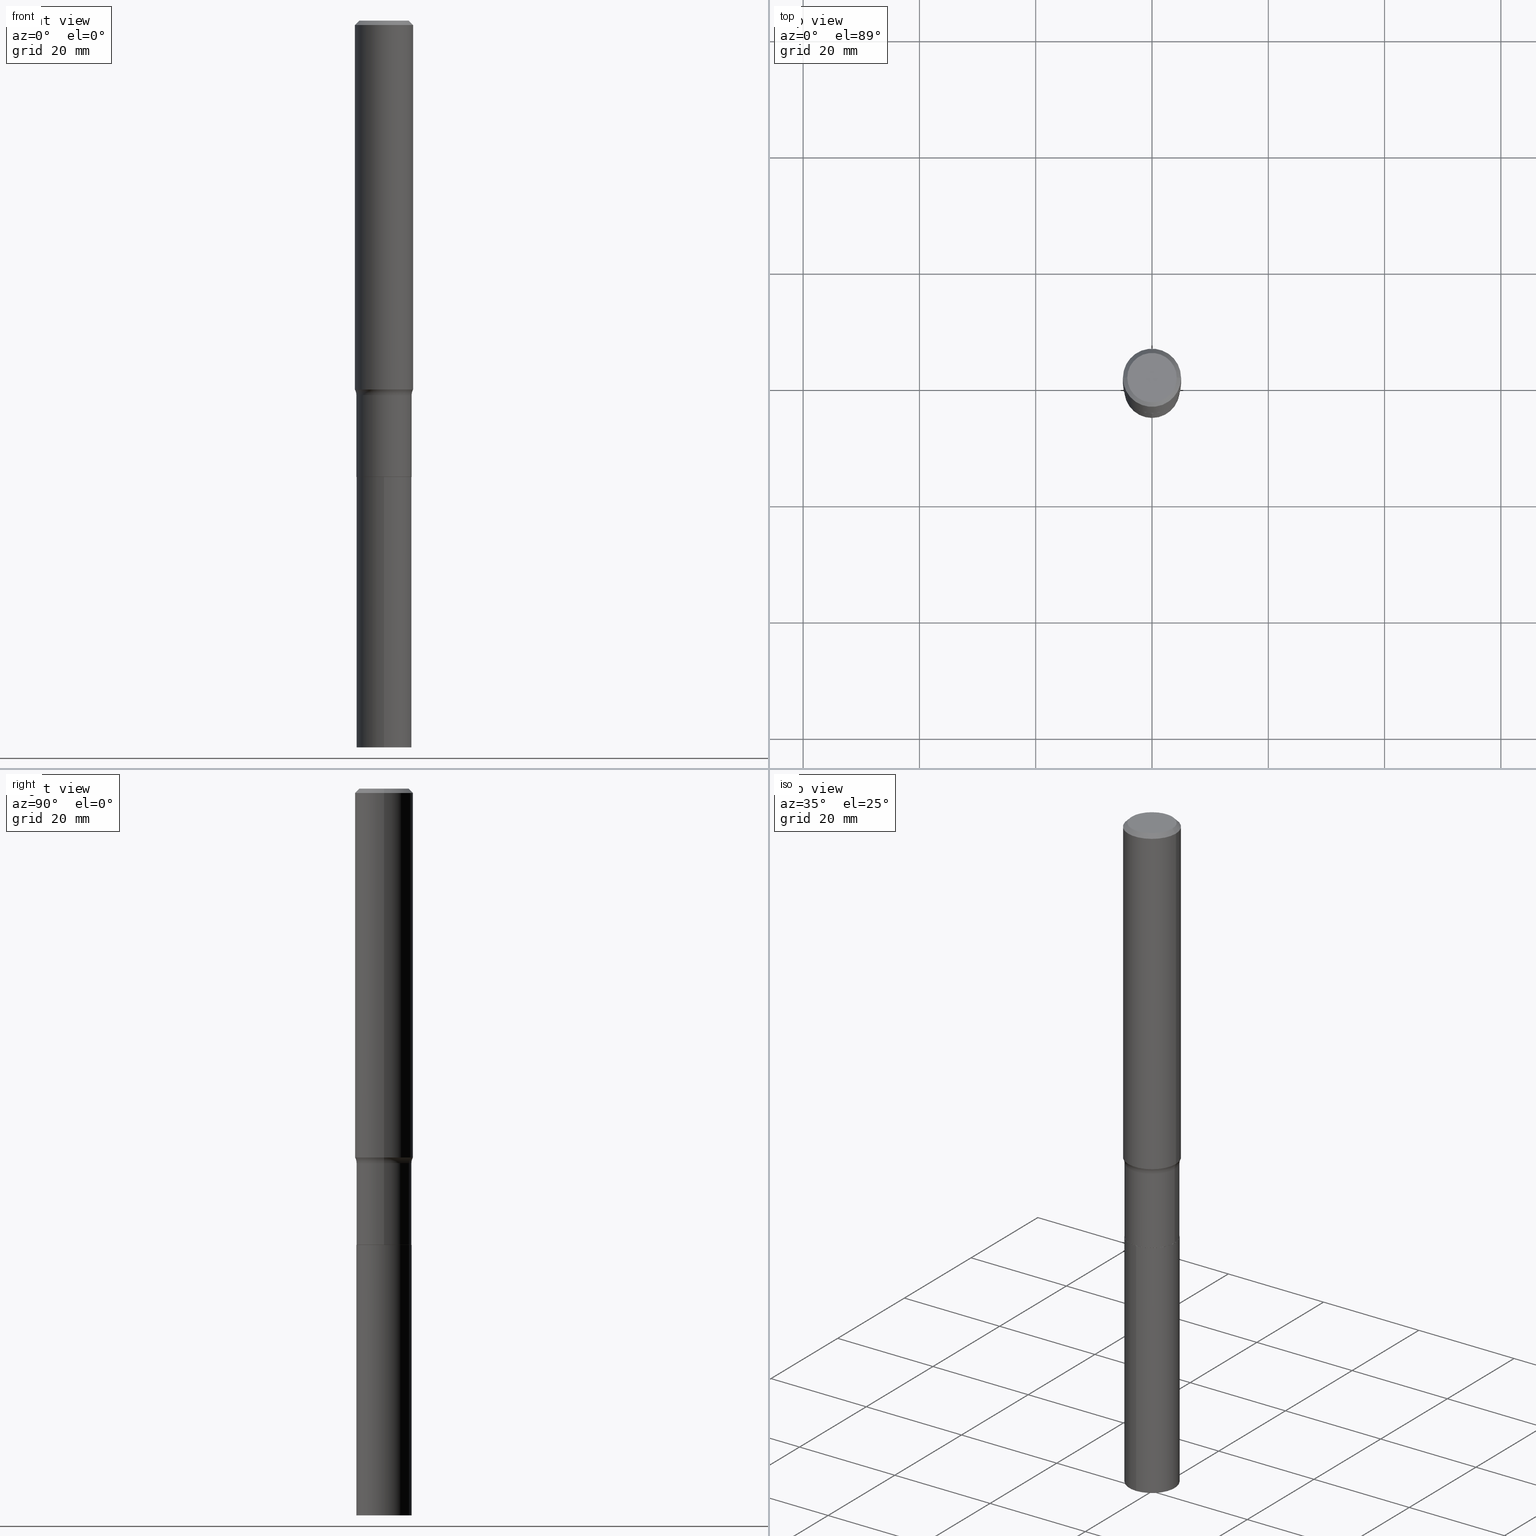
[diagram: canonical four-view strip — front | top / right | iso, engineering-drawing reading convention]
A machine part, canonical four-view strip (front | top / right | iso — engineering-drawing reading convention). The complete STEP part file that produces these views, byte-faithful:
ISO-10303-21;
HEADER;
FILE_DESCRIPTION (( 'STEP AP203' ),
    '1' );
FILE_NAME ('67883.STEP',
    '2024-04-19T16:53:20',
    ( '' ),
    ( '' ),
    'SwSTEP 2.0',
    'SolidWorks 2023',
    '' );
FILE_SCHEMA (( 'CONFIG_CONTROL_DESIGN' ));
ENDSEC;

DATA;
#1 = LOCAL_TIME ( 12, 53, 20.00000000000000000, #291 ) ;
#2 = CYLINDRICAL_SURFACE ( 'NONE', #114, 0.1869999999999999718 ) ;
#3 = CARTESIAN_POINT ( 'NONE',  ( -1.305814020727256468E-15, -0.1870000000000107965, -3.090299999999999159 ) ) ;
#4 = DIRECTION ( 'NONE',  ( -6.982962677686266711E-15, -1.000000000000000000, 2.921762560068730595E-15 ) ) ;
#5 = DIRECTION ( 'NONE',  ( -2.445466127994541695E-29, 3.491485174164510259E-15, 1.000000000000000000 ) ) ;
#6 = AXIS2_PLACEMENT_3D ( 'NONE', #420, #249, #244 ) ;
#7 = AXIS2_PLACEMENT_3D ( 'NONE', #398, #324, #463 ) ;
#8 = DIRECTION ( 'NONE',  ( -1.000000000000000000, 6.982962677686265922E-15, 0.000000000000000000 ) ) ;
#9 = ORIENTED_EDGE ( 'NONE', *, *, #41, .F. ) ;
#10 = CARTESIAN_POINT ( 'NONE',  ( 7.220858017463206858E-31, -1.030947152326916240E-16, -0.02952750000000018207 ) ) ;
#11 = ORIENTED_EDGE ( 'NONE', *, *, #345, .T. ) ;
#12 = CARTESIAN_POINT ( 'NONE',  ( -0.1673224999999999851, 1.219954130253505263E-15, 4.096137381439757534E-18 ) ) ;
#13 = EDGE_CURVE ( 'NONE', #301, #168, #53, .T. ) ;
#14 = ORIENTED_EDGE ( 'NONE', *, *, #350, .T. ) ;
#15 = FACE_OUTER_BOUND ( 'NONE', #84, .T. ) ;
#16 = AXIS2_PLACEMENT_3D ( 'NONE', #442, #305, #83 ) ;
#17 = CC_DESIGN_SECURITY_CLASSIFICATION ( #239, ( #182 ) ) ;
#18 = ORIENTED_EDGE ( 'NONE', *, *, #262, .T. ) ;
#19 = PERSON_AND_ORGANIZATION ( #332, #408 ) ;
#20 = DIRECTION ( 'NONE',  ( -0.7071067811865455743, 2.468850131082236945E-15, -0.7071067811865493491 ) ) ;
#21 = MECHANICAL_CONTEXT ( 'NONE', #117, 'mechanical' ) ;
#22 = LINE ( 'NONE', #208, #357 ) ;
#23 = CIRCLE ( 'NONE', #323, 0.1869999999999999440 ) ;
#24 = EDGE_CURVE ( 'NONE', #284, #422, #31, .T. ) ;
#25 = MANIFOLD_SOLID_BREP ( 'Body-Move/Copy2[1]', #314 ) ;
#26 = ORIENTED_EDGE ( 'NONE', *, *, #13, .F. ) ;
#27 = COORDINATED_UNIVERSAL_TIME_OFFSET ( 5, 0, .BEHIND. ) ;
#28 = EDGE_CURVE ( 'NONE', #422, #200, #141, .T. ) ;
#29 = FACE_OUTER_BOUND ( 'NONE', #409, .T. ) ;
#30 = CARTESIAN_POINT ( 'NONE',  ( -0.1864999999999999991, -9.464562579234385679E-15, -3.090299999999999603 ) ) ;
#31 = CIRCLE ( 'NONE', #6, 0.1869999999999999996 ) ;
#32 =( GEOMETRIC_REPRESENTATION_CONTEXT ( 3 ) GLOBAL_UNCERTAINTY_ASSIGNED_CONTEXT ( ( #267 ) ) GLOBAL_UNIT_ASSIGNED_CONTEXT ( ( #191, #348, #209 ) ) REPRESENTATION_CONTEXT ( 'NONE', 'WORKASPACE' ) );
#33 = CARTESIAN_POINT ( 'NONE',  ( -5.008488096090108951E-47, 7.150793614331948590E-33, 2.048068690724054183E-18 ) ) ;
#34 = DIRECTION ( 'NONE',  ( -2.445466127994541976E-29, 3.491485174164510259E-15, 1.000000000000000000 ) ) ;
#35 = DIRECTION ( 'NONE',  ( -2.445468806185136877E-29, 3.491481338843145188E-15, 1.000000000000000000 ) ) ;
#36 = CARTESIAN_POINT ( 'NONE',  ( 1.328714915871507843E-15, 0.1869999999999892304, -3.090300000000000047 ) ) ;
#37 = VECTOR ( 'NONE', #67, 39.37007874015748854 ) ;
#38 = CONICAL_SURFACE ( 'NONE', #381, 0.1968500000000000250, 0.7853981633974456145 ) ;
#39 = PRODUCT_DEFINITION ( 'UNKNOWN', '', #182, #183 ) ;
#40 = DIRECTION ( 'NONE',  ( 1.000000000000000000, -6.982962677686266711E-15, 0.000000000000000000 ) ) ;
#41 = EDGE_CURVE ( 'NONE', #309, #390, #379, .T. ) ;
#42 = CARTESIAN_POINT ( 'NONE',  ( 7.557232251753925568E-29, -1.078972478142697173E-14, -3.090299999999999603 ) ) ;
#43 = DIRECTION ( 'NONE',  ( 1.000000000000000000, -6.982962677686266711E-15, 4.876176775795935793E-29 ) ) ;
#44 = VERTEX_POINT ( 'NONE', #61 ) ;
#45 = DIMENSIONAL_EXPONENTS ( 1.000000000000000000, 0.000000000000000000, 0.000000000000000000, 0.000000000000000000, 0.000000000000000000, 0.000000000000000000, 0.000000000000000000 ) ;
#46 = FACE_OUTER_BOUND ( 'NONE', #405, .T. ) ;
#47 = EDGE_CURVE ( 'NONE', #447, #168, #22, .T. ) ;
#48 = DIRECTION ( 'NONE',  ( -2.445468806185136597E-29, 3.491481338843145583E-15, 1.000000000000000000 ) ) ;
#49 = EDGE_LOOP ( 'NONE', ( #386, #380, #81, #338 ) ) ;
#50 = DIRECTION ( 'NONE',  ( 2.445468806185136597E-29, -3.491481338843145583E-15, -1.000000000000000000 ) ) ;
#51 = ORIENTED_EDGE ( 'NONE', *, *, #232, .F. ) ;
#52 = CC_DESIGN_PERSON_AND_ORGANIZATION_ASSIGNMENT ( #19, #205, ( #377 ) ) ;
#53 = CIRCLE ( 'NONE', #113, 0.1968500000000000250 ) ;
#54 = CIRCLE ( 'NONE', #132, 0.1869999999999999996 ) ;
#55 = ORIENTED_EDGE ( 'NONE', *, *, #47, .F. ) ;
#56 = ADVANCED_FACE ( 'NONE', ( #29 ), #172, .T. ) ;
#57 = DIRECTION ( 'NONE',  ( 1.000000000000000000, -6.982962677686265133E-15, 0.000000000000000000 ) ) ;
#58 = DIRECTION ( 'NONE',  ( 1.000000000000000000, 0.000000000000000000, 0.000000000000000000 ) ) ;
#59 = ORIENTED_EDGE ( 'NONE', *, *, #28, .F. ) ;
#60 = CIRCLE ( 'NONE', #400, 0.07999999999999996003 ) ;
#61 = CARTESIAN_POINT ( 'NONE',  ( -0.1864999999999999991, -9.461913352060273689E-15, -3.090299999999999603 ) ) ;
#62 = CC_DESIGN_APPROVAL ( #315, ( #39 ) ) ;
#63 = DIRECTION ( 'NONE',  ( 0.000000000000000000, 0.000000000000000000, 1.000000000000000000 ) ) ;
#64 = EDGE_CURVE ( 'NONE', #349, #301, #100, .T. ) ;
#65 = CARTESIAN_POINT ( 'NONE',  ( 7.556009517350832766E-29, -1.078797904075754944E-14, -3.089799999999999436 ) ) ;
#66 = APPROVAL_ROLE ( '' ) ;
#67 = DIRECTION ( 'NONE',  ( 0.7071067811865455743, -7.319954787623248157E-15, -0.7071067811865493491 ) ) ;
#68 = CARTESIAN_POINT ( 'NONE',  ( -0.2669999999999999596, -6.957945867094519719E-15, -2.536200000000000010 ) ) ;
#69 = CIRCLE ( 'NONE', #16, 0.1968500000000000250 ) ;
#70 = DIRECTION ( 'NONE',  ( 7.105427357601001859E-15, 1.000000000000000000, -3.491481338843145583E-15 ) ) ;
#71 = FACE_OUTER_BOUND ( 'NONE', #242, .T. ) ;
#72 = CYLINDRICAL_SURFACE ( 'NONE', #214, 0.1869999999999999996 ) ;
#73 = AXIS2_PLACEMENT_3D ( 'NONE', #273, #86, #233 ) ;
#74 = DIRECTION ( 'NONE',  ( 1.000000000000000000, -6.982962677686267499E-15, 0.000000000000000000 ) ) ;
#75 = ADVANCED_FACE ( 'NONE', ( #356 ), #161, .T. ) ;
#76 = DIRECTION ( 'NONE',  ( 1.000000000000000000, -6.982962677686266711E-15, 4.876176775795935793E-29 ) ) ;
#77 = DIRECTION ( 'NONE',  ( -2.445466127994541976E-29, 3.491485174164510259E-15, 1.000000000000000000 ) ) ;
#78 = VERTEX_POINT ( 'NONE', #92 ) ;
#79 = CARTESIAN_POINT ( 'NONE',  ( -0.1869999999999999440, -8.492822090294381036E-15, -2.536200000000000010 ) ) ;
#80 = EDGE_CURVE ( 'NONE', #390, #309, #387, .T. ) ;
#81 = ORIENTED_EDGE ( 'NONE', *, *, #135, .T. ) ;
#82 = AXIS2_PLACEMENT_3D ( 'NONE', #341, #50, #8 ) ;
#83 = DIRECTION ( 'NONE',  ( 1.000000000000000000, -6.982962677686265922E-15, 0.000000000000000000 ) ) ;
#84 = EDGE_LOOP ( 'NONE', ( #351, #18 ) ) ;
#85 = LENGTH_MEASURE_WITH_UNIT ( LENGTH_MEASURE( 0.02539999999999999897 ), #307 );
#86 = DIRECTION ( 'NONE',  ( -2.445468806185136597E-29, 3.491481338843145583E-15, 1.000000000000000000 ) ) ;
#87 = EDGE_LOOP ( 'NONE', ( #198, #403 ) ) ;
#88 = EDGE_LOOP ( 'NONE', ( #252, #286, #225, #156 ) ) ;
#89 = EDGE_CURVE ( 'NONE', #78, #44, #394, .T. ) ;
#90 = AXIS2_PLACEMENT_3D ( 'NONE', #382, #240, #57 ) ;
#91 = LOCAL_TIME ( 12, 53, 20.00000000000000000, #243 ) ;
#92 = CARTESIAN_POINT ( 'NONE',  ( 0.1864999999999999991, -1.209204732081546072E-14, -3.090299999999999603 ) ) ;
#93 = DATE_AND_TIME ( #102, #221 ) ;
#94 = ORIENTED_EDGE ( 'NONE', *, *, #446, .F. ) ;
#95 = DATE_TIME_ROLE ( 'classification_date' ) ;
#96 = ORIENTED_EDGE ( 'NONE', *, *, #212, .T. ) ;
#97 = APPROVAL_STATUS ( 'not_yet_approved' ) ;
#98 = VECTOR ( 'NONE', #265, 39.37007874015748143 ) ;
#99 = CARTESIAN_POINT ( 'NONE',  ( 7.220858017463206858E-31, -1.030947152326916240E-16, -0.02952750000000018207 ) ) ;
#100 = LINE ( 'NONE', #392, #37 ) ;
#101 = PRODUCT_RELATED_PRODUCT_CATEGORY ( 'detail', '', ( #377 ) ) ;
#102 = CALENDAR_DATE ( 2024, 19, 4 ) ;
#103 = DIRECTION ( 'NONE',  ( -2.445468806185136597E-29, 3.491481338843145583E-15, 1.000000000000000000 ) ) ;
#104 = CARTESIAN_POINT ( 'NONE',  ( 1.203488073211193522E-28, -1.718263413532219501E-14, -4.921300000000000452 ) ) ;
#105 = DIRECTION ( 'NONE',  ( -2.445468806185136597E-29, 3.491481338843145583E-15, 1.000000000000000000 ) ) ;
#106 = APPLICATION_CONTEXT ( 'configuration controlled 3d designs of mechanical parts and assemblies' ) ;
#107 = AXIS2_PLACEMENT_3D ( 'NONE', #104, #34, #179 ) ;
#108 = DIRECTION ( 'NONE',  ( -2.445466127994541976E-29, 3.491485174164510259E-15, 1.000000000000000000 ) ) ;
#109 = DIRECTION ( 'NONE',  ( 1.000000000000000000, -6.982962677686268288E-15, 0.000000000000000000 ) ) ;
#110 = ADVANCED_FACE ( 'NONE', ( #180 ), #72, .T. ) ;
#111 = DIRECTION ( 'NONE',  ( -2.445468806185136597E-29, 3.491481338843145583E-15, 1.000000000000000000 ) ) ;
#112 = CARTESIAN_POINT ( 'NONE',  ( 0.1869999999999999718, -1.305814020727331607E-15, 9.118450570738398307E-30 ) ) ;
#113 = AXIS2_PLACEMENT_3D ( 'NONE', #99, #451, #383 ) ;
#114 = AXIS2_PLACEMENT_3D ( 'NONE', #464, #219, #76 ) ;
#115 = DIRECTION ( 'NONE',  ( -2.445466127994541976E-29, 3.491485174164510259E-15, 1.000000000000000000 ) ) ;
#116 = CARTESIAN_POINT ( 'NONE',  ( -0.1869999999999999996, -8.492822090294381036E-15, -3.089799999999999436 ) ) ;
#117 = APPLICATION_CONTEXT ( 'configuration controlled 3d designs of mechanical parts and assemblies' ) ;
#118 = ORIENTED_EDGE ( 'NONE', *, *, #28, .T. ) ;
#119 = DIRECTION ( 'NONE',  ( -2.445468806185136877E-29, 3.491481338843145188E-15, 1.000000000000000000 ) ) ;
#120 = ORIENTED_EDGE ( 'NONE', *, *, #24, .T. ) ;
#121 = CARTESIAN_POINT ( 'NONE',  ( 0.1864999999999999991, -1.209204732081546072E-14, -3.090299999999999603 ) ) ;
#122 = VERTEX_POINT ( 'NONE', #3 ) ;
#123 = VECTOR ( 'NONE', #115, 39.37007874015748143 ) ;
#124 = CC_DESIGN_APPROVAL ( #184, ( #239 ) ) ;
#125 = CARTESIAN_POINT ( 'NONE',  ( 0.1869999999999999996, -1.209379306148488144E-14, -3.089799999999999436 ) ) ;
#126 = ORIENTED_EDGE ( 'NONE', *, *, #89, .F. ) ;
#127 = ORIENTED_EDGE ( 'NONE', *, *, #13, .T. ) ;
#128 = EDGE_CURVE ( 'NONE', #447, #349, #336, .T. ) ;
#129 = CARTESIAN_POINT ( 'NONE',  ( 0.000000000000000000, 0.000000000000000000, 0.000000000000000000 ) ) ;
#130 = PERSON_AND_ORGANIZATION ( #332, #408 ) ;
#131 = AXIS2_PLACEMENT_3D ( 'NONE', #361, #296, #295 ) ;
#132 = AXIS2_PLACEMENT_3D ( 'NONE', #42, #77, #4 ) ;
#133 = ORIENTED_EDGE ( 'NONE', *, *, #165, .F. ) ;
#134 = PERSON_AND_ORGANIZATION_ROLE ( 'creator' ) ;
#135 = EDGE_CURVE ( 'NONE', #376, #448, #189, .T. ) ;
#136 = ORIENTED_EDGE ( 'NONE', *, *, #41, .T. ) ;
#137 = APPROVAL_ROLE ( '' ) ;
#138 = ORIENTED_EDGE ( 'NONE', *, *, #197, .F. ) ;
#139 = PERSON_AND_ORGANIZATION ( #332, #408 ) ;
#140 = CIRCLE ( 'NONE', #151, 0.1968500000000003303 ) ;
#141 = LINE ( 'NONE', #425, #166 ) ;
#142 = DIRECTION ( 'NONE',  ( -2.445468806185136597E-29, 3.491481338843145583E-15, 1.000000000000000000 ) ) ;
#143 = ADVANCED_FACE ( 'NONE', ( #146 ), #149, .T. ) ;
#144 = LINE ( 'NONE', #112, #229 ) ;
#145 = CC_DESIGN_DATE_AND_TIME_ASSIGNMENT ( #450, #95, ( #239 ) ) ;
#146 = FACE_OUTER_BOUND ( 'NONE', #282, .T. ) ;
#147 = EDGE_CURVE ( 'NONE', #390, #448, #144, .T. ) ;
#148 = DIRECTION ( 'NONE',  ( -1.000000000000000000, 7.105427357601001859E-15, 0.000000000000000000 ) ) ;
#149 = CYLINDRICAL_SURFACE ( 'NONE', #468, 0.1968500000000001915 ) ;
#150 = DIRECTION ( 'NONE',  ( 2.445468806185136597E-29, -3.491481338843145583E-15, -1.000000000000000000 ) ) ;
#151 = AXIS2_PLACEMENT_3D ( 'NONE', #292, #256, #396 ) ;
#152 = DIRECTION ( 'NONE',  ( -2.445468806185136597E-29, 3.491481338843145583E-15, 1.000000000000000000 ) ) ;
#153 = ORIENTED_EDGE ( 'NONE', *, *, #439, .T. ) ;
#154 = FACE_OUTER_BOUND ( 'NONE', #231, .T. ) ;
#155 = FACE_OUTER_BOUND ( 'NONE', #454, .T. ) ;
#156 = ORIENTED_EDGE ( 'NONE', *, *, #319, .T. ) ;
#157 = CARTESIAN_POINT ( 'NONE',  ( 0.1968500000000002748, -1.009541761308094903E-14, -2.497742523483722721 ) ) ;
#158 = ORIENTED_EDGE ( 'NONE', *, *, #378, .F. ) ;
#159 = AXIS2_PLACEMENT_3D ( 'NONE', #444, #194, #370 ) ;
#160 = PLANE ( 'NONE',  #238 ) ;
#161 = CYLINDRICAL_SURFACE ( 'NONE', #247, 0.1869999999999999718 ) ;
#162 = CALENDAR_DATE ( 2024, 19, 4 ) ;
#163 = DIRECTION ( 'NONE',  ( 1.000000000000000000, -6.982962677686268288E-15, 0.000000000000000000 ) ) ;
#164 = PERSON_AND_ORGANIZATION_ROLE ( 'classification_officer' ) ;
#165 = EDGE_CURVE ( 'NONE', #44, #309, #258, .T. ) ;
#166 = VECTOR ( 'NONE', #311, 39.37007874015748143 ) ;
#167 = AXIS2_PLACEMENT_3D ( 'NONE', #293, #105, #40 ) ;
#168 = VERTEX_POINT ( 'NONE', #429 ) ;
#169 = APPLICATION_PROTOCOL_DEFINITION ( 'international standard', 'config_control_design', 1994, #106 ) ;
#170 = CARTESIAN_POINT ( 'NONE',  ( 7.557232251753925568E-29, -1.078972478142697173E-14, -3.090299999999999603 ) ) ;
#171 = COORDINATED_UNIVERSAL_TIME_OFFSET ( 5, 0, .BEHIND. ) ;
#172 = CYLINDRICAL_SURFACE ( 'NONE', #299, 0.1869999999999999996 ) ;
#173 = DATE_AND_TIME ( #424, #91 ) ;
#174 = AXIS2_PLACEMENT_3D ( 'NONE', #373, #48, #226 ) ;
#175 = CARTESIAN_POINT ( 'NONE',  ( 0.2669999999999999596, -1.071954600651621861E-14, -2.536200000000000010 ) ) ;
#176 = CC_DESIGN_APPROVAL ( #215, ( #182 ) ) ;
#177 = ADVANCED_FACE ( 'NONE', ( #71 ), #2, .T. ) ;
#178 = DIRECTION ( 'NONE',  ( 2.438088387897960049E-29, -3.491481338843145188E-15, -1.000000000000000000 ) ) ;
#179 = DIRECTION ( 'NONE',  ( -6.982962677686266711E-15, -1.000000000000000000, 5.843525120137461189E-15 ) ) ;
#180 = FACE_OUTER_BOUND ( 'NONE', #369, .T. ) ;
#181 = DIRECTION ( 'NONE',  ( -6.982962677686266711E-15, -1.000000000000000000, 3.491481338843145583E-15 ) ) ;
#182 = PRODUCT_DEFINITION_FORMATION_WITH_SPECIFIED_SOURCE ( 'ANY', '', #377, .NOT_KNOWN. ) ;
#183 = DESIGN_CONTEXT ( 'detailed design', #106, 'design' ) ;
#184 = APPROVAL ( #288, 'UNSPECIFIED' ) ;
#185 = FACE_OUTER_BOUND ( 'NONE', #193, .T. ) ;
#186 = CARTESIAN_POINT ( 'NONE',  ( 0.1673224999999999851, -1.300749711163072397E-15, 4.096137381456741925E-18 ) ) ;
#187 = ORIENTED_EDGE ( 'NONE', *, *, #350, .F. ) ;
#188 = EDGE_CURVE ( 'NONE', #342, #371, #327, .T. ) ;
#189 = CIRCLE ( 'NONE', #206, 0.1869999999999999440 ) ;
#190 = CIRCLE ( 'NONE', #388, 0.1864999999999999991 ) ;
#191 =( CONVERSION_BASED_UNIT ( 'INCH', #85 ) LENGTH_UNIT ( ) NAMED_UNIT ( #45 ) );
#192 = LINE ( 'NONE', #121, #328 ) ;
#193 = EDGE_LOOP ( 'NONE', ( #306, #276, #26, #187 ) ) ;
#194 = DIRECTION ( 'NONE',  ( -2.445468806185136597E-29, 3.491481338843145583E-15, 1.000000000000000000 ) ) ;
#195 = MANIFOLD_SOLID_BREP ( 'Body-Move/Copy2[2]', #199 ) ;
#196 = DIRECTION ( 'NONE',  ( 2.445466127994541695E-29, -3.491485174164510259E-15, -1.000000000000000000 ) ) ;
#197 = EDGE_CURVE ( 'NONE', #371, #342, #140, .T. ) ;
#198 = ORIENTED_EDGE ( 'NONE', *, *, #128, .T. ) ;
#199 = CLOSED_SHELL ( 'NONE', ( #360, #363, #330, #251, #177, #75, #384, #143, #287, #281, #269, #304 ) ) ;
#200 = VERTEX_POINT ( 'NONE', #36 ) ;
#201 = CARTESIAN_POINT ( 'NONE',  ( 0.000000000000000000, 0.000000000000000000, 0.000000000000000000 ) ) ;
#202 = CARTESIAN_POINT ( 'NONE',  ( 7.557232251753925568E-29, -1.078972478142697173E-14, -3.090299999999999603 ) ) ;
#203 = SHAPE_DEFINITION_REPRESENTATION ( #235, #285 ) ;
#204 = DIRECTION ( 'NONE',  ( -2.445468806185136597E-29, 3.491481338843145583E-15, 1.000000000000000000 ) ) ;
#205 = PERSON_AND_ORGANIZATION_ROLE ( 'design_owner' ) ;
#206 = AXIS2_PLACEMENT_3D ( 'NONE', #326, #103, #362 ) ;
#207 = APPROVAL_PERSON_ORGANIZATION ( #391, #315, #66 ) ;
#208 = CARTESIAN_POINT ( 'NONE',  ( -0.1968500000000000250, 1.271501487869850120E-15, -0.02952750000000018207 ) ) ;
#209 =( NAMED_UNIT ( * ) SI_UNIT ( $, .STERADIAN. ) SOLID_ANGLE_UNIT ( ) );
#210 = EDGE_LOOP ( 'NONE', ( #313, #136, #213, #266 ) ) ;
#211 = APPROVAL_DATE_TIME ( #246, #315 ) ;
#212 = EDGE_CURVE ( 'NONE', #371, #448, #271, .T. ) ;
#213 = ORIENTED_EDGE ( 'NONE', *, *, #147, .T. ) ;
#214 = AXIS2_PLACEMENT_3D ( 'NONE', #294, #108, #393 ) ;
#215 = APPROVAL ( #419, 'UNSPECIFIED' ) ;
#216 = AXIS2_PLACEMENT_3D ( 'NONE', #410, #437, #43 ) ;
#217 = DIRECTION ( 'NONE',  ( -2.445468806185136597E-29, 3.491481338843145583E-15, 1.000000000000000000 ) ) ;
#218 = CARTESIAN_POINT ( 'NONE',  ( -1.305814020727211503E-15, -0.1870000000000171803, -4.921299999999999564 ) ) ;
#219 = DIRECTION ( 'NONE',  ( -2.445468806185136597E-29, 3.491481338843145583E-15, 1.000000000000000000 ) ) ;
#220 = CARTESIAN_POINT ( 'NONE',  ( 7.557232251753925568E-29, -1.078972478142697173E-14, -3.090299999999999603 ) ) ;
#221 = LOCAL_TIME ( 12, 53, 20.00000000000000000, #27 ) ;
#222 = FACE_OUTER_BOUND ( 'NONE', #87, .T. ) ;
#223 = EDGE_CURVE ( 'NONE', #342, #376, #60, .T. ) ;
#224 = CARTESIAN_POINT ( 'NONE',  ( -0.1968500000000001915, 1.398703375343758577E-15, -9.682923725166790684E-30 ) ) ;
#225 = ORIENTED_EDGE ( 'NONE', *, *, #47, .T. ) ;
#226 = DIRECTION ( 'NONE',  ( 1.000000000000000000, -6.982962677686268288E-15, 0.000000000000000000 ) ) ;
#227 = CC_DESIGN_PERSON_AND_ORGANIZATION_ASSIGNMENT ( #253, #250, ( #182 ) ) ;
#228 = ORIENTED_EDGE ( 'NONE', *, *, #24, .F. ) ;
#229 = VECTOR ( 'NONE', #35, 39.37007874015748143 ) ;
#230 = LINE ( 'NONE', #298, #98 ) ;
#231 = EDGE_LOOP ( 'NONE', ( #228, #94 ) ) ;
#232 = EDGE_CURVE ( 'NONE', #44, #78, #190, .T. ) ;
#233 = DIRECTION ( 'NONE',  ( 1.000000000000000000, -6.982962677686269866E-15, 4.883557194083114022E-29 ) ) ;
#234 = ORIENTED_EDGE ( 'NONE', *, *, #80, .F. ) ;
#235 = PRODUCT_DEFINITION_SHAPE ( 'NONE', 'NONE',  #39 ) ;
#236 = ORIENTED_EDGE ( 'NONE', *, *, #297, .F. ) ;
#237 = AXIS2_PLACEMENT_3D ( 'NONE', #65, #204, #353 ) ;
#238 = AXIS2_PLACEMENT_3D ( 'NONE', #415, #5, #277 ) ;
#239 = SECURITY_CLASSIFICATION ( '', '', #462 ) ;
#240 = DIRECTION ( 'NONE',  ( -2.445468806185136597E-29, 3.491481338843145583E-15, 1.000000000000000000 ) ) ;
#241 = APPROVAL_DATE_TIME ( #93, #215 ) ;
#242 = EDGE_LOOP ( 'NONE', ( #310, #11, #274, #411 ) ) ;
#243 = COORDINATED_UNIVERSAL_TIME_OFFSET ( 5, 0, .BEHIND. ) ;
#244 = DIRECTION ( 'NONE',  ( -6.982962677686266711E-15, -1.000000000000000000, 5.843525120137461189E-15 ) ) ;
#245 = CC_DESIGN_PERSON_AND_ORGANIZATION_ASSIGNMENT ( #354, #164, ( #239 ) ) ;
#246 = DATE_AND_TIME ( #162, #1 ) ;
#247 = AXIS2_PLACEMENT_3D ( 'NONE', #129, #278, #416 ) ;
#248 = APPROVAL_PERSON_ORGANIZATION ( #352, #215, #137 ) ;
#249 = DIRECTION ( 'NONE',  ( -2.445466127994541976E-29, 3.491485174164510259E-15, 1.000000000000000000 ) ) ;
#250 = PERSON_AND_ORGANIZATION_ROLE ( 'creator' ) ;
#251 = ADVANCED_FACE ( 'NONE', ( #331 ), #272, .F. ) ;
#252 = ORIENTED_EDGE ( 'NONE', *, *, #64, .F. ) ;
#253 = PERSON_AND_ORGANIZATION ( #332, #408 ) ;
#254 = PLANE ( 'NONE',  #289 ) ;
#255 = CIRCLE ( 'NONE', #107, 0.1869999999999999996 ) ;
#256 = DIRECTION ( 'NONE',  ( -2.445468806185136597E-29, 3.491481338843145583E-15, 1.000000000000000000 ) ) ;
#257 = APPROVAL_PERSON_ORGANIZATION ( #139, #184, #279 ) ;
#258 = LINE ( 'NONE', #30, #467 ) ;
#259 = DIRECTION ( 'NONE',  ( 1.000000000000000000, -6.982962677686269866E-15, 4.883557194083114022E-29 ) ) ;
#260 = DIRECTION ( 'NONE',  ( -2.438088387897960049E-29, 3.491481338843145188E-15, 1.000000000000000000 ) ) ;
#261 = AXIS2_PLACEMENT_3D ( 'NONE', #275, #196, #413 ) ;
#262 = EDGE_CURVE ( 'NONE', #200, #122, #461, .T. ) ;
#263 = CARTESIAN_POINT ( 'NONE',  ( 1.328714915871484966E-15, 0.1869999999999828466, -4.921300000000002228 ) ) ;
#264 = ORIENTED_EDGE ( 'NONE', *, *, #412, .F. ) ;
#265 = DIRECTION ( 'NONE',  ( -2.445468806185136877E-29, 3.491481338843145188E-15, 1.000000000000000000 ) ) ;
#266 = ORIENTED_EDGE ( 'NONE', *, *, #135, .F. ) ;
#267 = UNCERTAINTY_MEASURE_WITH_UNIT (LENGTH_MEASURE( 1.000000000000000082E-05 ), #191, 'distance_accuracy_value', 'NONE');
#268 = DIRECTION ( 'NONE',  ( 1.000000000000000000, -6.982962677686268288E-15, 0.000000000000000000 ) ) ;
#269 = ADVANCED_FACE ( 'NONE', ( #434 ), #254, .F. ) ;
#270 = EDGE_LOOP ( 'NONE', ( #374, #449, #234, #236 ) ) ;
#271 = CIRCLE ( 'NONE', #452, 0.07999999999999996003 ) ;
#272 = TOROIDAL_SURFACE ( 'NONE', #358, 0.2669999999999999596, 0.07999999999999998779 ) ;
#273 = CARTESIAN_POINT ( 'NONE',  ( 6.202197986246743952E-29, -8.855094971573986534E-15, -2.536200000000000010 ) ) ;
#274 = ORIENTED_EDGE ( 'NONE', *, *, #431, .F. ) ;
#275 = CARTESIAN_POINT ( 'NONE',  ( 7.557232251753925568E-29, -1.078972478142697173E-14, -3.090299999999999603 ) ) ;
#276 = ORIENTED_EDGE ( 'NONE', *, *, #426, .T. ) ;
#277 = DIRECTION ( 'NONE',  ( -6.982962677686265922E-15, -1.000000000000000000, 3.491485174164510259E-15 ) ) ;
#278 = DIRECTION ( 'NONE',  ( -2.445468806185136597E-29, 3.491481338843145583E-15, 1.000000000000000000 ) ) ;
#279 = APPROVAL_ROLE ( '' ) ;
#280 = AXIS2_PLACEMENT_3D ( 'NONE', #33, #178, #325 ) ;
#281 = ADVANCED_FACE ( 'NONE', ( #222 ), #359, .F. ) ;
#282 = EDGE_LOOP ( 'NONE', ( #438, #456, #14, #441 ) ) ;
#283 = COORDINATED_UNIVERSAL_TIME_OFFSET ( 5, 0, .BEHIND. ) ;
#284 = VERTEX_POINT ( 'NONE', #218 ) ;
#285 = ADVANCED_BREP_SHAPE_REPRESENTATION ( '67883', ( #25, #195, #300 ), #32 ) ;
#286 = ORIENTED_EDGE ( 'NONE', *, *, #128, .F. ) ;
#287 = ADVANCED_FACE ( 'NONE', ( #339 ), #38, .T. ) ;
#288 = APPROVAL_STATUS ( 'not_yet_approved' ) ;
#289 = AXIS2_PLACEMENT_3D ( 'NONE', #365, #260, #401 ) ;
#290 = ORIENTED_EDGE ( 'NONE', *, *, #439, .F. ) ;
#291 = COORDINATED_UNIVERSAL_TIME_OFFSET ( 5, 0, .BEHIND. ) ;
#292 = CARTESIAN_POINT ( 'NONE',  ( 6.108151427061589913E-29, -8.720821409978404261E-15, -2.497742523483722721 ) ) ;
#293 = CARTESIAN_POINT ( 'NONE',  ( 6.108151427061589913E-29, -8.720821409978404261E-15, -2.497742523483722721 ) ) ;
#294 = CARTESIAN_POINT ( 'NONE',  ( 7.557232251753925568E-29, -1.078972478142697173E-14, -3.090299999999999603 ) ) ;
#295 = DIRECTION ( 'NONE',  ( 1.000000000000000000, -6.982962677686267499E-15, 4.876294436782262290E-29 ) ) ;
#296 = DIRECTION ( 'NONE',  ( -2.445468806185136597E-29, 3.491481338843145583E-15, 1.000000000000000000 ) ) ;
#297 = EDGE_CURVE ( 'NONE', #78, #390, #192, .T. ) ;
#298 = CARTESIAN_POINT ( 'NONE',  ( -0.1869999999999999718, 1.328714915871387147E-15, -9.198408618776671699E-30 ) ) ;
#299 = AXIS2_PLACEMENT_3D ( 'NONE', #170, #322, #317 ) ;
#300 = AXIS2_PLACEMENT_3D ( 'NONE', #201, #63, #58 ) ;
#301 = VERTEX_POINT ( 'NONE', #368 ) ;
#302 = CARTESIAN_POINT ( 'NONE',  ( 0.1968500000000001915, -1.374596203102542989E-15, 9.598753983154309266E-30 ) ) ;
#303 = ORIENTED_EDGE ( 'NONE', *, *, #446, .T. ) ;
#304 = ADVANCED_FACE ( 'NONE', ( #155 ), #417, .T. ) ;
#305 = DIRECTION ( 'NONE',  ( -2.445468806185136597E-29, 3.491481338843145583E-15, 1.000000000000000000 ) ) ;
#306 = ORIENTED_EDGE ( 'NONE', *, *, #197, .T. ) ;
#307 =( LENGTH_UNIT ( ) NAMED_UNIT ( * ) SI_UNIT ( $, .METRE. ) );
#308 = DIRECTION ( 'NONE',  ( -1.000000000000000000, 6.982962677686265922E-15, 0.000000000000000000 ) ) ;
#309 = VERTEX_POINT ( 'NONE', #116 ) ;
#310 = ORIENTED_EDGE ( 'NONE', *, *, #80, .T. ) ;
#311 = DIRECTION ( 'NONE',  ( -2.445466127994541976E-29, 3.491485174164510259E-15, 1.000000000000000000 ) ) ;
#312 = PERSON_AND_ORGANIZATION_ROLE ( 'design_supplier' ) ;
#313 = ORIENTED_EDGE ( 'NONE', *, *, #345, .F. ) ;
#314 = CLOSED_SHELL ( 'NONE', ( #56, #465, #110, #459 ) ) ;
#315 = APPROVAL ( #97, 'UNSPECIFIED' ) ;
#316 = AXIS2_PLACEMENT_3D ( 'NONE', #375, #152, #268 ) ;
#317 = DIRECTION ( 'NONE',  ( -6.982962677686266711E-15, -1.000000000000000000, 2.921762560068730595E-15 ) ) ;
#318 = PERSON_AND_ORGANIZATION ( #332, #408 ) ;
#319 = EDGE_CURVE ( 'NONE', #168, #301, #69, .T. ) ;
#320 = ORIENTED_EDGE ( 'NONE', *, *, #262, .F. ) ;
#321 = CALENDAR_DATE ( 2024, 19, 4 ) ;
#322 = DIRECTION ( 'NONE',  ( -2.445466127994541976E-29, 3.491485174164510259E-15, 1.000000000000000000 ) ) ;
#323 = AXIS2_PLACEMENT_3D ( 'NONE', #366, #111, #74 ) ;
#324 = DIRECTION ( 'NONE',  ( -2.445466127994541976E-29, 3.491485174164510259E-15, 1.000000000000000000 ) ) ;
#325 = DIRECTION ( 'NONE',  ( -1.000000000000000000, 6.982962677686265922E-15, -4.876176775795935793E-29 ) ) ;
#326 = CARTESIAN_POINT ( 'NONE',  ( 6.202197986246743952E-29, -8.855094971573986534E-15, -2.536200000000000010 ) ) ;
#327 = CIRCLE ( 'NONE', #167, 0.1968500000000003303 ) ;
#328 = VECTOR ( 'NONE', #406, 39.37007874015748143 ) ;
#329 = DIRECTION ( 'NONE',  ( 1.000000000000000000, -6.982962677686262766E-15, 0.000000000000000000 ) ) ;
#330 = ADVANCED_FACE ( 'NONE', ( #185 ), #440, .T. ) ;
#331 = FACE_OUTER_BOUND ( 'NONE', #49, .T. ) ;
#332 = PERSON ( 'UNSPECIFIED', 'UNSPECIFIED', 'UNSPECIFIED', ('UNSPECIFIED'), ('UNSPECIFIED'), ('UNSPECIFIED') ) ;
#333 = LINE ( 'NONE', #428, #123 ) ;
#334 = LINE ( 'NONE', #302, #445 ) ;
#335 = FACE_OUTER_BOUND ( 'NONE', #270, .T. ) ;
#336 = CIRCLE ( 'NONE', #131, 0.1673224999999999851 ) ;
#337 = CIRCLE ( 'NONE', #159, 0.1673224999999999851 ) ;
#338 = ORIENTED_EDGE ( 'NONE', *, *, #212, .F. ) ;
#339 = FACE_OUTER_BOUND ( 'NONE', #88, .T. ) ;
#340 = ORIENTED_EDGE ( 'NONE', *, *, #64, .T. ) ;
#341 = CARTESIAN_POINT ( 'NONE',  ( 7.220858017463206858E-31, -1.030947152326916240E-16, -0.02952750000000018207 ) ) ;
#342 = VERTEX_POINT ( 'NONE', #367 ) ;
#343 = ORIENTED_EDGE ( 'NONE', *, *, #297, .T. ) ;
#344 = CARTESIAN_POINT ( 'NONE',  ( 0.1869999999999999440, -1.016090899230131854E-14, -2.536200000000000010 ) ) ;
#345 = EDGE_CURVE ( 'NONE', #309, #376, #230, .T. ) ;
#346 = ORIENTED_EDGE ( 'NONE', *, *, #223, .F. ) ;
#347 = DIRECTION ( 'NONE',  ( -2.445468806185136597E-29, 3.491481338843145583E-15, 1.000000000000000000 ) ) ;
#348 =( NAMED_UNIT ( * ) PLANE_ANGLE_UNIT ( ) SI_UNIT ( $, .RADIAN. ) );
#349 = VERTEX_POINT ( 'NONE', #186 ) ;
#350 = EDGE_CURVE ( 'NONE', #371, #301, #334, .T. ) ;
#351 = ORIENTED_EDGE ( 'NONE', *, *, #412, .T. ) ;
#352 = PERSON_AND_ORGANIZATION ( #332, #408 ) ;
#353 = DIRECTION ( 'NONE',  ( 1.000000000000000000, -6.982962677686265133E-15, 0.000000000000000000 ) ) ;
#354 = PERSON_AND_ORGANIZATION ( #332, #408 ) ;
#355 = CC_DESIGN_PERSON_AND_ORGANIZATION_ASSIGNMENT ( #130, #312, ( #182 ) ) ;
#356 = FACE_OUTER_BOUND ( 'NONE', #210, .T. ) ;
#357 = VECTOR ( 'NONE', #20, 39.37007874015748854 ) ;
#358 = AXIS2_PLACEMENT_3D ( 'NONE', #427, #217, #259 ) ;
#359 = PLANE ( 'NONE',  #280 ) ;
#360 = ADVANCED_FACE ( 'NONE', ( #335 ), #364, .T. ) ;
#361 = CARTESIAN_POINT ( 'NONE',  ( -1.001697619218021790E-46, 1.430158722866389718E-32, 4.096137381448108366E-18 ) ) ;
#362 = DIRECTION ( 'NONE',  ( 1.000000000000000000, -6.982962677686267499E-15, 0.000000000000000000 ) ) ;
#363 = ADVANCED_FACE ( 'NONE', ( #404 ), #430, .T. ) ;
#364 = CONICAL_SURFACE ( 'NONE', #174, 0.1864999999999999991, 0.7853981633972775267 ) ;
#365 = CARTESIAN_POINT ( 'NONE',  ( 7.557232251753925568E-29, -1.078972478142697173E-14, -3.090299999999999603 ) ) ;
#366 = CARTESIAN_POINT ( 'NONE',  ( 6.202197986246743952E-29, -8.855094971573986534E-15, -2.536200000000000010 ) ) ;
#367 = CARTESIAN_POINT ( 'NONE',  ( -0.1968500000000002748, -7.322118034634645685E-15, -2.497742523483722721 ) ) ;
#368 = CARTESIAN_POINT ( 'NONE',  ( 0.1968500000000000250, -1.477690918335233294E-15, -0.02952750000000018207 ) ) ;
#369 = EDGE_LOOP ( 'NONE', ( #59, #303, #153, #320 ) ) ;
#370 = DIRECTION ( 'NONE',  ( 1.000000000000000000, -6.982962677686267499E-15, 4.876294436782262290E-29 ) ) ;
#371 = VERTEX_POINT ( 'NONE', #157 ) ;
#372 = PLANE ( 'NONE',  #261 ) ;
#373 = CARTESIAN_POINT ( 'NONE',  ( 7.557232251753925568E-29, -1.078972478142697173E-14, -3.090299999999999603 ) ) ;
#374 = ORIENTED_EDGE ( 'NONE', *, *, #89, .T. ) ;
#375 = CARTESIAN_POINT ( 'NONE',  ( 7.557232251753925568E-29, -1.078972478142697173E-14, -3.090299999999999603 ) ) ;
#376 = VERTEX_POINT ( 'NONE', #79 ) ;
#377 = PRODUCT ( '67883', '67883', '', ( #21 ) ) ;
#378 = EDGE_CURVE ( 'NONE', #349, #447, #337, .T. ) ;
#379 = CIRCLE ( 'NONE', #237, 0.1869999999999999996 ) ;
#380 = ORIENTED_EDGE ( 'NONE', *, *, #223, .T. ) ;
#381 = AXIS2_PLACEMENT_3D ( 'NONE', #10, #150, #308 ) ;
#382 = CARTESIAN_POINT ( 'NONE',  ( 7.556009517350832766E-29, -1.078797904075754944E-14, -3.089799999999999436 ) ) ;
#383 = DIRECTION ( 'NONE',  ( 1.000000000000000000, -6.982962677686265922E-15, 0.000000000000000000 ) ) ;
#384 = ADVANCED_FACE ( 'NONE', ( #46 ), #436, .F. ) ;
#385 = APPROVAL_DATE_TIME ( #173, #184 ) ;
#386 = ORIENTED_EDGE ( 'NONE', *, *, #188, .F. ) ;
#387 = CIRCLE ( 'NONE', #90, 0.1869999999999999996 ) ;
#388 = AXIS2_PLACEMENT_3D ( 'NONE', #220, #433, #109 ) ;
#389 = DATE_AND_TIME ( #455, #423 ) ;
#390 = VERTEX_POINT ( 'NONE', #125 ) ;
#391 = PERSON_AND_ORGANIZATION ( #332, #408 ) ;
#392 = CARTESIAN_POINT ( 'NONE',  ( 0.1968500000000000250, -1.453583746094017706E-15, -0.02952750000000018207 ) ) ;
#393 = DIRECTION ( 'NONE',  ( -6.982962677686266711E-15, -1.000000000000000000, 2.921762560068730595E-15 ) ) ;
#394 = CIRCLE ( 'NONE', #460, 0.1864999999999999991 ) ;
#395 = VECTOR ( 'NONE', #399, 39.37007874015748143 ) ;
#396 = DIRECTION ( 'NONE',  ( 1.000000000000000000, -6.982962677686266711E-15, 0.000000000000000000 ) ) ;
#397 = DIRECTION ( 'NONE',  ( -0.7071067811864267805, 7.493145998869918709E-15, 0.7071067811866682540 ) ) ;
#398 = CARTESIAN_POINT ( 'NONE',  ( 7.557232251753925568E-29, -1.078972478142697173E-14, -3.090299999999999603 ) ) ;
#399 = DIRECTION ( 'NONE',  ( -2.445468806185136877E-29, 3.491481338843145188E-15, 1.000000000000000000 ) ) ;
#400 = AXIS2_PLACEMENT_3D ( 'NONE', #68, #70, #148 ) ;
#401 = DIRECTION ( 'NONE',  ( 1.000000000000000000, -6.982962677686265922E-15, 4.876176775795935793E-29 ) ) ;
#402 = LINE ( 'NONE', #224, #395 ) ;
#403 = ORIENTED_EDGE ( 'NONE', *, *, #378, .T. ) ;
#404 = FACE_OUTER_BOUND ( 'NONE', #458, .T. ) ;
#405 = EDGE_LOOP ( 'NONE', ( #346, #138, #96, #414 ) ) ;
#406 = DIRECTION ( 'NONE',  ( 0.7071067811864267805, -2.468850131080992517E-15, 0.7071067811866682540 ) ) ;
#407 = CC_DESIGN_PERSON_AND_ORGANIZATION_ASSIGNMENT ( #318, #134, ( #39 ) ) ;
#408 = ORGANIZATION ( 'UNSPECIFIED', 'UNSPECIFIED', '' ) ;
#409 = EDGE_LOOP ( 'NONE', ( #120, #118, #264, #290 ) ) ;
#410 = CARTESIAN_POINT ( 'NONE',  ( 0.000000000000000000, 0.000000000000000000, 0.000000000000000000 ) ) ;
#411 = ORIENTED_EDGE ( 'NONE', *, *, #147, .F. ) ;
#412 = EDGE_CURVE ( 'NONE', #122, #200, #54, .T. ) ;
#413 = DIRECTION ( 'NONE',  ( 6.982962677686265922E-15, 1.000000000000000000, -3.491485174164510259E-15 ) ) ;
#414 = ORIENTED_EDGE ( 'NONE', *, *, #431, .T. ) ;
#415 = CARTESIAN_POINT ( 'NONE',  ( -8.046536996898375856E-29, -4.594036728658125943E-14, -4.921300000000000452 ) ) ;
#416 = DIRECTION ( 'NONE',  ( 1.000000000000000000, -6.982962677686266711E-15, 4.876176775795935793E-29 ) ) ;
#417 = CONICAL_SURFACE ( 'NONE', #316, 0.1864999999999999991, 0.7853981633972775267 ) ;
#418 = EDGE_LOOP ( 'NONE', ( #126, #51 ) ) ;
#419 = APPROVAL_STATUS ( 'not_yet_approved' ) ;
#420 = CARTESIAN_POINT ( 'NONE',  ( 1.203488073211193522E-28, -1.718263413532219501E-14, -4.921300000000000452 ) ) ;
#421 = APPLICATION_PROTOCOL_DEFINITION ( 'international standard', 'config_control_design', 1994, #117 ) ;
#422 = VERTEX_POINT ( 'NONE', #263 ) ;
#423 = LOCAL_TIME ( 12, 53, 20.00000000000000000, #283 ) ;
#424 = CALENDAR_DATE ( 2024, 19, 4 ) ;
#425 = CARTESIAN_POINT ( 'NONE',  ( 1.328714915871462681E-15, 0.1869999999999892304, -3.090300000000000047 ) ) ;
#426 = EDGE_CURVE ( 'NONE', #342, #168, #402, .T. ) ;
#427 = CARTESIAN_POINT ( 'NONE',  ( 6.202197986246743952E-29, -8.855094971573986534E-15, -2.536200000000000010 ) ) ;
#428 = CARTESIAN_POINT ( 'NONE',  ( -1.305814020727256468E-15, -0.1870000000000107965, -3.090299999999999159 ) ) ;
#429 = CARTESIAN_POINT ( 'NONE',  ( -0.1968500000000000250, -3.013254687261788214E-15, -0.02952750000000018207 ) ) ;
#430 = CONICAL_SURFACE ( 'NONE', #82, 0.1968500000000000250, 0.7853981633974456145 ) ;
#431 = EDGE_CURVE ( 'NONE', #448, #376, #23, .T. ) ;
#432 = DIRECTION ( 'NONE',  ( 1.000000000000000000, -6.982962677686266711E-15, 4.876176775795935793E-29 ) ) ;
#433 = DIRECTION ( 'NONE',  ( -2.445468806185136597E-29, 3.491481338843145583E-15, 1.000000000000000000 ) ) ;
#434 = FACE_OUTER_BOUND ( 'NONE', #418, .T. ) ;
#435 = CC_DESIGN_DATE_AND_TIME_ASSIGNMENT ( #389, #457, ( #39 ) ) ;
#436 = TOROIDAL_SURFACE ( 'NONE', #73, 0.2669999999999999596, 0.07999999999999998779 ) ;
#437 = DIRECTION ( 'NONE',  ( -2.445468806185136597E-29, 3.491481338843145583E-15, 1.000000000000000000 ) ) ;
#438 = ORIENTED_EDGE ( 'NONE', *, *, #426, .F. ) ;
#439 = EDGE_CURVE ( 'NONE', #284, #122, #333, .T. ) ;
#440 = CYLINDRICAL_SURFACE ( 'NONE', #216, 0.1968500000000001915 ) ;
#441 = ORIENTED_EDGE ( 'NONE', *, *, #319, .F. ) ;
#442 = CARTESIAN_POINT ( 'NONE',  ( 7.220858017463206858E-31, -1.030947152326916240E-16, -0.02952750000000018207 ) ) ;
#443 = ORIENTED_EDGE ( 'NONE', *, *, #232, .T. ) ;
#444 = CARTESIAN_POINT ( 'NONE',  ( -1.001697619218021790E-46, 1.430158722866389718E-32, 4.096137381448108366E-18 ) ) ;
#445 = VECTOR ( 'NONE', #119, 39.37007874015748143 ) ;
#446 = EDGE_CURVE ( 'NONE', #422, #284, #255, .T. ) ;
#447 = VERTEX_POINT ( 'NONE', #12 ) ;
#448 = VERTEX_POINT ( 'NONE', #344 ) ;
#449 = ORIENTED_EDGE ( 'NONE', *, *, #165, .T. ) ;
#450 = DATE_AND_TIME ( #321, #453 ) ;
#451 = DIRECTION ( 'NONE',  ( -2.445468806185136597E-29, 3.491481338843145583E-15, 1.000000000000000000 ) ) ;
#452 = AXIS2_PLACEMENT_3D ( 'NONE', #175, #181, #329 ) ;
#453 = LOCAL_TIME ( 12, 53, 20.00000000000000000, #171 ) ;
#454 = EDGE_LOOP ( 'NONE', ( #133, #443, #343, #9 ) ) ;
#455 = CALENDAR_DATE ( 2024, 19, 4 ) ;
#456 = ORIENTED_EDGE ( 'NONE', *, *, #188, .T. ) ;
#457 = DATE_TIME_ROLE ( 'creation_date' ) ;
#458 = EDGE_LOOP ( 'NONE', ( #158, #340, #127, #55 ) ) ;
#459 = ADVANCED_FACE ( 'NONE', ( #15 ), #372, .F. ) ;
#460 = AXIS2_PLACEMENT_3D ( 'NONE', #202, #347, #163 ) ;
#461 = CIRCLE ( 'NONE', #7, 0.1869999999999999996 ) ;
#462 = SECURITY_CLASSIFICATION_LEVEL ( 'unclassified' ) ;
#463 = DIRECTION ( 'NONE',  ( -6.982962677686266711E-15, -1.000000000000000000, 2.921762560068730595E-15 ) ) ;
#464 = CARTESIAN_POINT ( 'NONE',  ( 0.000000000000000000, 0.000000000000000000, 0.000000000000000000 ) ) ;
#465 = ADVANCED_FACE ( 'NONE', ( #154 ), #160, .F. ) ;
#466 = CARTESIAN_POINT ( 'NONE',  ( 0.000000000000000000, 0.000000000000000000, 0.000000000000000000 ) ) ;
#467 = VECTOR ( 'NONE', #397, 39.37007874015748143 ) ;
#468 = AXIS2_PLACEMENT_3D ( 'NONE', #466, #142, #432 ) ;
ENDSEC;
END-ISO-10303-21;
